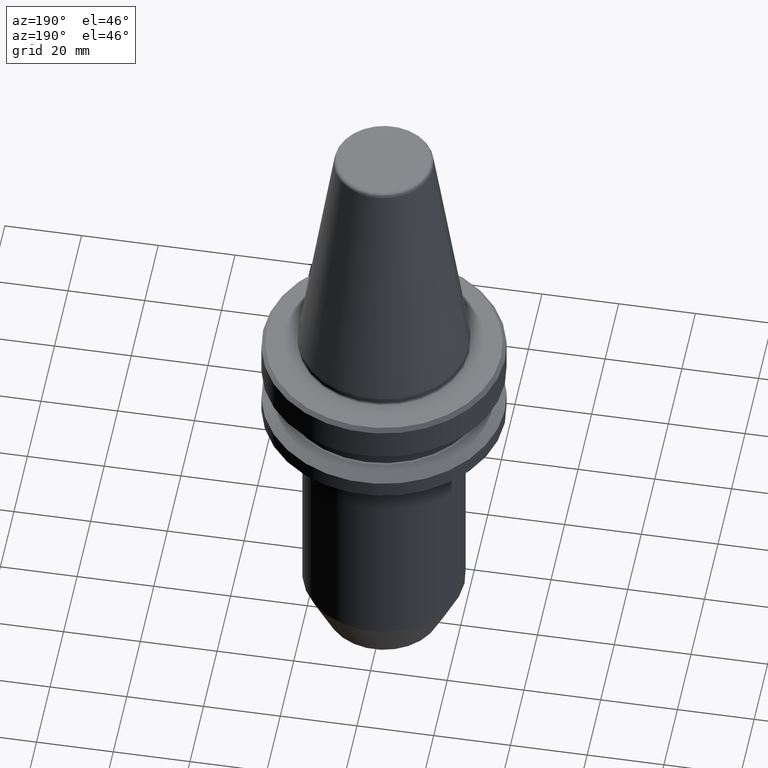
[diagram: clean part render]
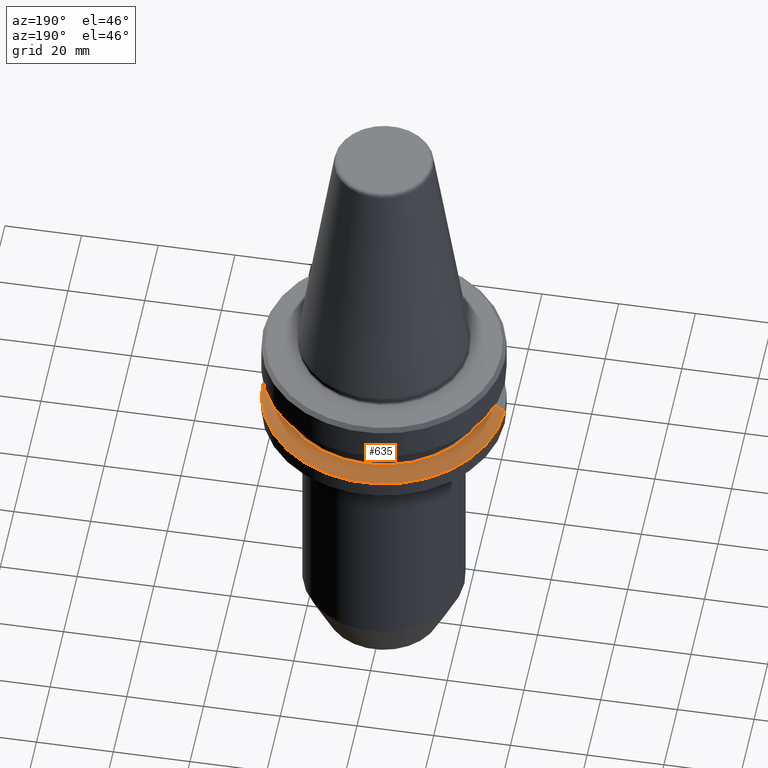
[diagram: same view with one face highlighted and labeled with its STEP entity id]
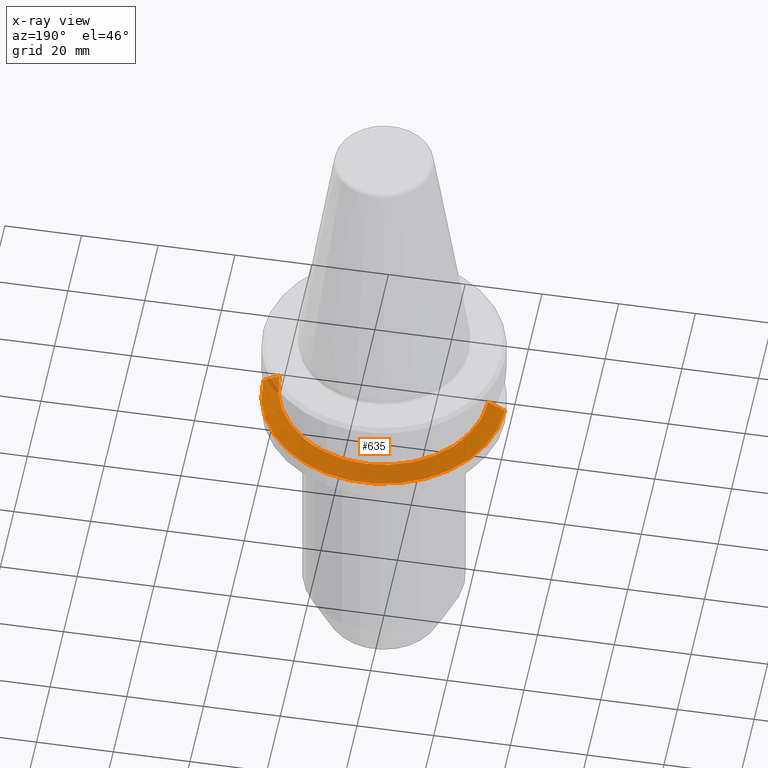
[diagram: x-ray of the same camera — body ghosted, the highlighted face saturated]
A machine part, auxiliary view. The second image highlights one B-rep face of the part: STEP entity #635.
The next image is the same camera in x-ray: the body ghosted, the highlighted face saturated — about 2% of this face is hidden behind the body in this view.
In plain terms, the highlighted conical surface has half-angle 60 deg.
Its self-contained STEP definition (entity closure, byte-faithful):
#24 = VERTEX_POINT ( 'NONE', #265 ) ;
#50 = DIRECTION ( 'NONE',  ( 0.0000000000000000000, 0.0000000000000000000, -1.000000000000000000 ) ) ;
#54 = CIRCLE ( 'NONE', #498, 27.16962701892200400 ) ;
#60 = DIRECTION ( 'NONE',  ( -0.0000000000000000000, -0.0000000000000000000, 1.000000000000000000 ) ) ;
#91 = ORIENTED_EDGE ( 'NONE', *, *, #914, .F. ) ;
#100 = CARTESIAN_POINT ( 'NONE',  ( 31.50000000000041600, 3.857637417314213200E-015, -21.60014200642024200 ) ) ;
#117 = CARTESIAN_POINT ( 'NONE',  ( -27.16962701892200400, 0.0000000000000000000, -19.10000000010314400 ) ) ;
#137 = DIRECTION ( 'NONE',  ( 1.000000000000000000, 0.0000000000000000000, 0.0000000000000000000 ) ) ;
#167 = CIRCLE ( 'NONE', #742, 31.50000000000041600 ) ;
#171 = EDGE_CURVE ( 'NONE', #24, #612, #167, .T. ) ;
#174 = CARTESIAN_POINT ( 'NONE',  ( -31.50000000000041600, 0.0000000000000000000, -21.60014200642024200 ) ) ;
#213 = ORIENTED_EDGE ( 'NONE', *, *, #171, .T. ) ;
#220 = AXIS2_PLACEMENT_3D ( 'NONE', #666, #50, #486 ) ;
#235 = DIRECTION ( 'NONE',  ( -0.0000000000000000000, -0.0000000000000000000, 1.000000000000000000 ) ) ;
#241 = VECTOR ( 'NONE', #909, 1000.000000000000000 ) ;
#242 = FACE_OUTER_BOUND ( 'NONE', #525, .T. ) ;
#262 = CARTESIAN_POINT ( 'NONE',  ( 27.16962701892200400, 3.592478546794620500E-015, -19.10000000010314400 ) ) ;
#265 = CARTESIAN_POINT ( 'NONE',  ( 31.50000000000041600, 0.0000000000000000000, -21.60014200642024200 ) ) ;
#337 = ORIENTED_EDGE ( 'NONE', *, *, #419, .T. ) ;
#394 = VERTEX_POINT ( 'NONE', #262 ) ;
#409 = CONICAL_SURFACE ( 'NONE', #220, 31.50000000000041600, 1.047197551196599000 ) ;
#419 = EDGE_CURVE ( 'NONE', #394, #24, #1022, .T. ) ;
#486 = DIRECTION ( 'NONE',  ( -1.000000000000000000, 0.0000000000000000000, 0.0000000000000000000 ) ) ;
#488 = LINE ( 'NONE', #174, #241 ) ;
#498 = AXIS2_PLACEMENT_3D ( 'NONE', #877, #235, #755 ) ;
#525 = EDGE_LOOP ( 'NONE', ( #731, #337, #213, #91 ) ) ;
#612 = VERTEX_POINT ( 'NONE', #838 ) ;
#635 = ADVANCED_FACE ( 'NONE', ( #242 ), #409, .T. ) ;
#666 = CARTESIAN_POINT ( 'NONE',  ( 0.0000000000000000000, 0.0000000000000000000, -21.60014200642024200 ) ) ;
#731 = ORIENTED_EDGE ( 'NONE', *, *, #944, .F. ) ;
#742 = AXIS2_PLACEMENT_3D ( 'NONE', #904, #60, #137 ) ;
#755 = DIRECTION ( 'NONE',  ( 1.000000000000000000, 0.0000000000000000000, 0.0000000000000000000 ) ) ;
#780 = VERTEX_POINT ( 'NONE', #117 ) ;
#782 = DIRECTION ( 'NONE',  ( 0.8660254037844392600, 1.060575238724907700E-016, -0.4999999999999989500 ) ) ;
#807 = VECTOR ( 'NONE', #782, 1000.000000000000000 ) ;
#838 = CARTESIAN_POINT ( 'NONE',  ( -31.50000000000041600, 3.857637417314213200E-015, -21.60014200642024200 ) ) ;
#877 = CARTESIAN_POINT ( 'NONE',  ( 0.0000000000000000000, 0.0000000000000000000, -19.10000000010314400 ) ) ;
#904 = CARTESIAN_POINT ( 'NONE',  ( 0.0000000000000000000, 0.0000000000000000000, -21.60014200642024200 ) ) ;
#909 = DIRECTION ( 'NONE',  ( -0.8660254037844392600, 0.0000000000000000000, -0.4999999999999989500 ) ) ;
#914 = EDGE_CURVE ( 'NONE', #780, #612, #488, .T. ) ;
#944 = EDGE_CURVE ( 'NONE', #394, #780, #54, .T. ) ;
#1022 = LINE ( 'NONE', #100, #807 ) ;